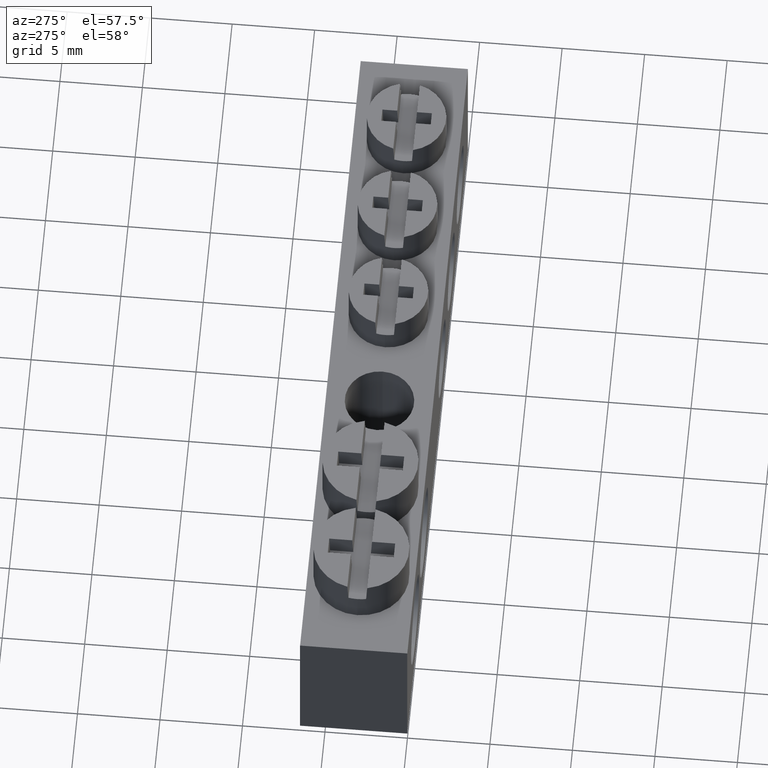
[diagram: clean part render]
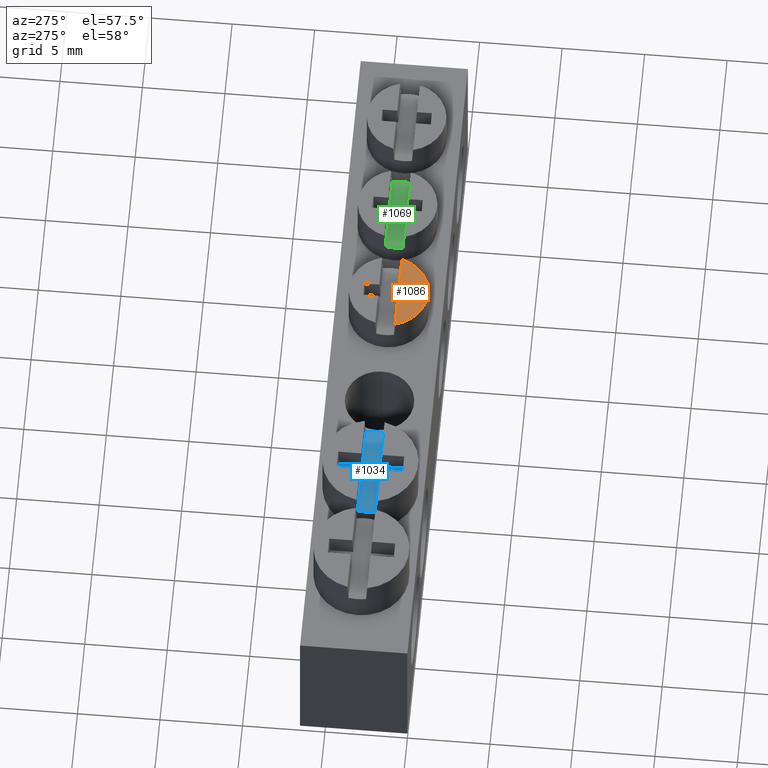
[diagram: same view with three faces highlighted in distinct colors, each labeled with its STEP entity id]
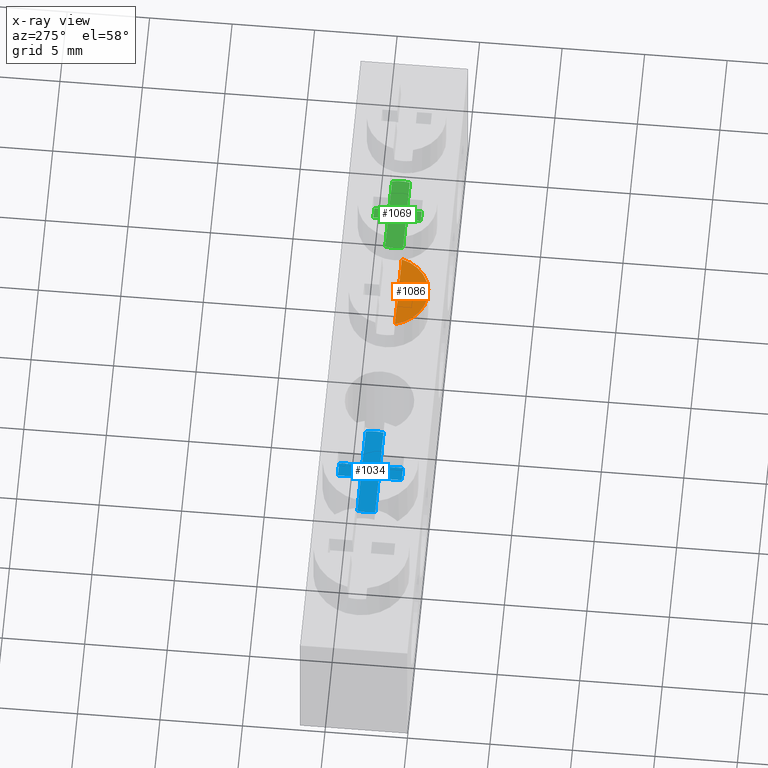
[diagram: x-ray of the same camera — body ghosted, the three highlighted faces saturated]
A machine part, auxiliary view with three faces highlighted in distinct colors.
The next image is the same camera in x-ray (body ghosted, the three faces saturated) — at least one of them is partly hidden behind the body in this view.
Their STEP definitions:

[orange] entity #1086 — the highlighted planar face has unit normal (0, -0, -1).
#451 = DIRECTION ( 'NONE',  ( 0.9999995805169152900, -0.0009159508684426614400, 0.0000000000000000000 ) ) ;
#452 = DIRECTION ( 'NONE',  ( -0.0009159508684351666700, -0.9999995805169152900, 0.0000000000000000000 ) ) ;
#454 = LINE ( 'NONE', #474, #1683 ) ;
#474 = CARTESIAN_POINT ( 'NONE',  ( 23.62445059727219400, 2.650366632037224800, 11.57000000000000000 ) ) ;
#493 = LINE ( 'NONE', #494, #1709 ) ;
#494 = CARTESIAN_POINT ( 'NONE',  ( 21.70066139654508700, 2.652128729165501600, 11.57000000000000000 ) ) ;
#503 = LINE ( 'NONE', #512, #1735 ) ;
#512 = CARTESIAN_POINT ( 'NONE',  ( 23.62362624149060500, 1.750367009571999600, 11.57000000000000000 ) ) ;
#531 = DIRECTION ( 'NONE',  ( 0.9999995805169152900, -0.0009159508684425023800, 0.0000000000000000000 ) ) ;
#637 = DIRECTION ( 'NONE',  ( 1.000000000000000000, 0.0000000000000000000, 0.0000000000000000000 ) ) ;
#638 = LINE ( 'NONE', #660, #1800 ) ;
#652 = DIRECTION ( 'NONE',  ( 8.334928087094020100E-017, -7.634387822271229700E-020, -1.000000000000000000 ) ) ;
#654 = CARTESIAN_POINT ( 'NONE',  ( 24.02500000000000200, 3.250000000000000900, 11.57000000000000000 ) ) ;
#660 = CARTESIAN_POINT ( 'NONE',  ( 24.42362590590409600, 1.749634248877245800, 11.57000000000000000 ) ) ;
#661 = DIRECTION ( 'NONE',  ( 0.0009159508684582958500, 0.9999995805169152900, 0.0000000000000000000 ) ) ;
#759 = CARTESIAN_POINT ( 'NONE',  ( 24.42445026168571000, 2.649633871342471600, 11.57000000000000000 ) ) ;
#780 = LINE ( 'NONE', #759, #1761 ) ;
#799 = DIRECTION ( 'NONE',  ( 0.9999995805169152900, -0.0009159508684422253700, 0.0000000000000000000 ) ) ;
#926 = EDGE_LOOP ( 'NONE', ( #2547, #2594, #2597, #2598, #2488, #2516 ) ) ;
#1086 = ADVANCED_FACE ( 'NONE', ( #3416 ), #3413, .F. ) ;
#1244 = EDGE_CURVE ( 'NONE', #3021, #3045, #454, .T. ) ;
#1252 = EDGE_CURVE ( 'NONE', #2993, #3021, #493, .T. ) ;
#1267 = EDGE_CURVE ( 'NONE', #3045, #2971, #503, .T. ) ;
#1300 = EDGE_CURVE ( 'NONE', #3043, #2993, #1791, .T. ) ;
#1306 = EDGE_CURVE ( 'NONE', #2971, #2948, #638, .T. ) ;
#1341 = EDGE_CURVE ( 'NONE', #2948, #3043, #780, .T. ) ;
#1503 = AXIS2_PLACEMENT_3D ( 'NONE', #3401, #3375, #3425 ) ;
#1683 = VECTOR ( 'NONE', #452, 1000.000000000000200 ) ;
#1709 = VECTOR ( 'NONE', #451, 1000.000000000000100 ) ;
#1735 = VECTOR ( 'NONE', #531, 1000.000000000000100 ) ;
#1761 = VECTOR ( 'NONE', #799, 1000.000000000000100 ) ;
#1770 = AXIS2_PLACEMENT_3D ( 'NONE', #654, #652, #637 ) ;
#1791 = CIRCLE ( 'NONE', #1770, 2.399999999999999500 ) ;
#1800 = VECTOR ( 'NONE', #661, 1000.000000000000100 ) ;
#2174 = CARTESIAN_POINT ( 'NONE',  ( 24.42362590590410700, 1.749634248877245800, 11.57000000000000200 ) ) ;
#2203 = CARTESIAN_POINT ( 'NONE',  ( 24.42445026168570600, 2.649633871342472500, 11.57000000000000200 ) ) ;
#2216 = CARTESIAN_POINT ( 'NONE',  ( 21.70066139654508300, 2.652128729165502500, 11.57000000000000000 ) ) ;
#2236 = CARTESIAN_POINT ( 'NONE',  ( 26.34823946241278500, 2.647871774214196200, 11.57000000000000000 ) ) ;
#2250 = CARTESIAN_POINT ( 'NONE',  ( 23.62445059727219000, 2.650366632037224800, 11.57000000000000200 ) ) ;
#2261 = CARTESIAN_POINT ( 'NONE',  ( 23.62362624149059800, 1.750367009571999400, 11.57000000000000200 ) ) ;
#2488 = ORIENTED_EDGE ( 'NONE', *, *, #1267, .F. ) ;
#2516 = ORIENTED_EDGE ( 'NONE', *, *, #1244, .F. ) ;
#2547 = ORIENTED_EDGE ( 'NONE', *, *, #1252, .F. ) ;
#2594 = ORIENTED_EDGE ( 'NONE', *, *, #1300, .F. ) ;
#2597 = ORIENTED_EDGE ( 'NONE', *, *, #1341, .F. ) ;
#2598 = ORIENTED_EDGE ( 'NONE', *, *, #1306, .F. ) ;
#2948 = VERTEX_POINT ( 'NONE', #2203 ) ;
#2971 = VERTEX_POINT ( 'NONE', #2174 ) ;
#2993 = VERTEX_POINT ( 'NONE', #2216 ) ;
#3021 = VERTEX_POINT ( 'NONE', #2250 ) ;
#3043 = VERTEX_POINT ( 'NONE', #2236 ) ;
#3045 = VERTEX_POINT ( 'NONE', #2261 ) ;
#3375 = DIRECTION ( 'NONE',  ( 8.325394558248058400E-017, -1.041597087756019900E-016, -1.000000000000000000 ) ) ;
#3401 = CARTESIAN_POINT ( 'NONE',  ( 24.02500000000000200, 3.250000000000000900, 11.57000000000000000 ) ) ;
#3413 = PLANE ( 'NONE',  #1503 ) ;
#3416 = FACE_OUTER_BOUND ( 'NONE', #926, .T. ) ;
#3425 = DIRECTION ( 'NONE',  ( 0.0000000000000000000, 1.000000000000000000, -1.041597087756019900E-016 ) ) ;

[blue] entity #1034 — the highlighted planar face has unit normal (-0, 0, -1).
#203 = DIRECTION ( 'NONE',  ( 1.000000000000000000, 1.420678708774109300E-014, 0.0000000000000000000 ) ) ;
#208 = DIRECTION ( 'NONE',  ( -6.938880860708999700E-018, 9.513422018793010800E-021, -1.000000000000000000 ) ) ;
#222 = CARTESIAN_POINT ( 'NONE',  ( 11.52500000000000000, 3.250000000000000900, 10.80000000000000100 ) ) ;
#280 = DIRECTION ( 'NONE',  ( -6.938880860708999700E-018, 9.513422018793010800E-021, -1.000000000000000000 ) ) ;
#282 = DIRECTION ( 'NONE',  ( 1.000000000000000000, 0.0000000000000000000, 0.0000000000000000000 ) ) ;
#285 = CARTESIAN_POINT ( 'NONE',  ( 11.52500000000000000, 3.250000000000000900, 10.80000000000000100 ) ) ;
#590 = LINE ( 'NONE', #591, #1820 ) ;
#591 = CARTESIAN_POINT ( 'NONE',  ( 11.09054558258908700, 5.187708136031458700, 10.80000000000000100 ) ) ;
#597 = DIRECTION ( 'NONE',  ( 0.9999990601380758200, -0.001371029892067901900, 0.0000000000000000000 ) ) ;
#648 = LINE ( 'NONE', #658, #1798 ) ;
#650 = DIRECTION ( 'NONE',  ( 0.9999990601380758200, -0.001371029892061744100, 7.189919831439450000E-016 ) ) ;
#658 = CARTESIAN_POINT ( 'NONE',  ( 8.674439598814943900, 2.716797037521634800, 10.80000000000000100 ) ) ;
#663 = LINE ( 'NONE', #677, #1810 ) ;
#677 = CARTESIAN_POINT ( 'NONE',  ( 11.96137385925980500, 2.712290548161845600, 10.79999999999999900 ) ) ;
#679 = LINE ( 'NONE', #701, #1782 ) ;
#699 = DIRECTION ( 'NONE',  ( 0.9999990601380758200, -0.001371029892061743200, 7.189919831439445100E-016 ) ) ;
#701 = CARTESIAN_POINT ( 'NONE',  ( 11.08715335118646500, 2.713489131737172300, 10.80000000000000200 ) ) ;
#707 = DIRECTION ( 'NONE',  ( -0.001371029892062053700, -0.9999990601380758200, -2.478176394252586100E-015 ) ) ;
#710 = LINE ( 'NONE', #749, #1751 ) ;
#717 = DIRECTION ( 'NONE',  ( -0.9999990601380758200, 0.001371029892061923200, 7.189919831439445100E-016 ) ) ;
#749 = CARTESIAN_POINT ( 'NONE',  ( 14.37556040118505900, 3.783202962478359900, 10.80000000000000100 ) ) ;
#758 = CARTESIAN_POINT ( 'NONE',  ( 11.08523390933757100, 1.313490447543869800, 10.79999999999999900 ) ) ;
#764 = CARTESIAN_POINT ( 'NONE',  ( 11.08862614074020100, 3.787709451838149600, 10.79999999999999900 ) ) ;
#767 = DIRECTION ( 'NONE',  ( -6.938880860708999700E-018, 9.513422018793010800E-021, -1.000000000000000000 ) ) ;
#774 = LINE ( 'NONE', #764, #1897 ) ;
#779 = LINE ( 'NONE', #758, #1918 ) ;
#781 = CARTESIAN_POINT ( 'NONE',  ( 11.52500000000000000, 3.250000000000000900, 10.80000000000000100 ) ) ;
#784 = DIRECTION ( 'NONE',  ( 0.9999990601380758200, -0.001371029892062197300, 3.968613935628955300E-015 ) ) ;
#789 = DIRECTION ( 'NONE',  ( 1.000000000000000000, 0.0000000000000000000, 0.0000000000000000000 ) ) ;
#800 = DIRECTION ( 'NONE',  ( -0.9999990601380758200, 0.001371029892061741300, 7.189919831439435200E-016 ) ) ;
#889 = EDGE_LOOP ( 'NONE', ( #2619, #2641, #2557, #2606, #2640, #2654, #2609, #2634, #2618, #2552, #2666, #2656, #2591, #2595 ) ) ;
#1034 = ADVANCED_FACE ( 'NONE', ( #3110 ), #3152, .F. ) ;
#1157 = EDGE_CURVE ( 'NONE', #2921, #2918, #1604, .T. ) ;
#1188 = EDGE_CURVE ( 'NONE', #2825, #2887, #1627, .T. ) ;
#1296 = EDGE_CURVE ( 'NONE', #3037, #3008, #590, .T. ) ;
#1305 = EDGE_CURVE ( 'NONE', #2942, #3014, #648, .T. ) ;
#1310 = EDGE_CURVE ( 'NONE', #3014, #3023, #679, .T. ) ;
#1314 = EDGE_CURVE ( 'NONE', #3050, #2969, #663, .T. ) ;
#1329 = EDGE_CURVE ( 'NONE', #2921, #3000, #710, .T. ) ;
#1338 = EDGE_CURVE ( 'NONE', #2918, #2969, #1848, .T. ) ;
#1346 = EDGE_CURVE ( 'NONE', #3017, #2887, #774, .T. ) ;
#1351 = EDGE_CURVE ( 'NONE', #3023, #2964, #779, .T. ) ;
#1371 = EDGE_CURVE ( 'NONE', #2942, #2825, #1933, .T. ) ;
#1385 = EDGE_CURVE ( 'NONE', #3008, #3000, #1826, .T. ) ;
#1392 = EDGE_CURVE ( 'NONE', #3017, #3037, #1930, .T. ) ;
#1405 = EDGE_CURVE ( 'NONE', #2964, #3050, #1949, .T. ) ;
#1441 = AXIS2_PLACEMENT_3D ( 'NONE', #3139, #3147, #3119 ) ;
#1568 = AXIS2_PLACEMENT_3D ( 'NONE', #222, #208, #203 ) ;
#1604 = CIRCLE ( 'NONE', #1568, 2.899999999999999900 ) ;
#1627 = CIRCLE ( 'NONE', #1643, 2.899999999999999900 ) ;
#1643 = AXIS2_PLACEMENT_3D ( 'NONE', #285, #280, #282 ) ;
#1712 = DIRECTION ( 'NONE',  ( -6.938880860708999700E-018, 9.513422018793010800E-021, -1.000000000000000000 ) ) ;
#1750 = DIRECTION ( 'NONE',  ( 1.000000000000000000, 0.0000000000000000000, 0.0000000000000000000 ) ) ;
#1751 = VECTOR ( 'NONE', #717, 1000.000000000000100 ) ;
#1782 = VECTOR ( 'NONE', #707, 1000.000000000000100 ) ;
#1798 = VECTOR ( 'NONE', #650, 1000.000000000000100 ) ;
#1810 = VECTOR ( 'NONE', #699, 1000.000000000000100 ) ;
#1820 = VECTOR ( 'NONE', #597, 1000.000000000000200 ) ;
#1826 = LINE ( 'NONE', #1828, #1943 ) ;
#1828 = CARTESIAN_POINT ( 'NONE',  ( 11.96476609066243700, 5.186509552456128000, 10.80000000000000100 ) ) ;
#1831 = DIRECTION ( 'NONE',  ( -0.001371029892067010300, -0.9999990601380758200, 0.0000000000000000000 ) ) ;
#1848 = CIRCLE ( 'NONE', #1852, 2.899999999999999900 ) ;
#1852 = AXIS2_PLACEMENT_3D ( 'NONE', #781, #767, #789 ) ;
#1875 = CARTESIAN_POINT ( 'NONE',  ( 11.08862614074020100, 3.787709451838149100, 10.80000000000000100 ) ) ;
#1897 = VECTOR ( 'NONE', #800, 1000.000000000000200 ) ;
#1900 = DIRECTION ( 'NONE',  ( 0.001371029892060808200, 0.9999990601380758200, 0.0000000000000000000 ) ) ;
#1918 = VECTOR ( 'NONE', #784, 1000.000000000000200 ) ;
#1928 = AXIS2_PLACEMENT_3D ( 'NONE', #2316, #1712, #1750 ) ;
#1930 = LINE ( 'NONE', #1875, #2013 ) ;
#1933 = CIRCLE ( 'NONE', #1928, 2.899999999999999900 ) ;
#1943 = VECTOR ( 'NONE', #1831, 1000.000000000000200 ) ;
#1949 = LINE ( 'NONE', #1973, #2064 ) ;
#1970 = DIRECTION ( 'NONE',  ( 0.001371029892062056100, 0.9999990601380758200, -3.717264591378886200E-015 ) ) ;
#1973 = CARTESIAN_POINT ( 'NONE',  ( 11.95945441741092300, 1.312291863968544400, 10.80000000000000200 ) ) ;
#2013 = VECTOR ( 'NONE', #1900, 1000.000000000000200 ) ;
#2053 = CARTESIAN_POINT ( 'NONE',  ( 8.625000000000000000, 3.250000000000001300, 10.80000000000000100 ) ) ;
#2064 = VECTOR ( 'NONE', #1970, 1000.000000000000100 ) ;
#2105 = CARTESIAN_POINT ( 'NONE',  ( 14.37556040118505700, 3.783202962478360300, 10.80000000000000100 ) ) ;
#2114 = CARTESIAN_POINT ( 'NONE',  ( 8.675912388368681500, 3.791017357622614300, 10.80000000000000100 ) ) ;
#2148 = CARTESIAN_POINT ( 'NONE',  ( 14.42500000000000100, 3.250000000000000900, 10.80000000000000100 ) ) ;
#2157 = CARTESIAN_POINT ( 'NONE',  ( 11.95945441741092500, 1.312291863968544400, 10.80000000000000200 ) ) ;
#2158 = CARTESIAN_POINT ( 'NONE',  ( 14.37408761163131600, 2.708982642377380800, 10.80000000000000100 ) ) ;
#2184 = CARTESIAN_POINT ( 'NONE',  ( 11.96284664881354600, 3.786510868262825000, 10.80000000000000200 ) ) ;
#2200 = CARTESIAN_POINT ( 'NONE',  ( 8.674439598814947400, 2.716797037521634800, 10.80000000000000100 ) ) ;
#2220 = CARTESIAN_POINT ( 'NONE',  ( 11.08523390933757800, 1.313490447543868900, 10.79999999999999900 ) ) ;
#2221 = CARTESIAN_POINT ( 'NONE',  ( 11.96476609066243700, 5.186509552456128000, 10.79999999999999900 ) ) ;
#2226 = CARTESIAN_POINT ( 'NONE',  ( 11.08862614074020100, 3.787709451838149100, 10.79999999999999900 ) ) ;
#2251 = CARTESIAN_POINT ( 'NONE',  ( 11.09054558258908900, 5.187708136031458700, 10.79999999999999900 ) ) ;
#2260 = CARTESIAN_POINT ( 'NONE',  ( 11.96137385925980600, 2.712290548161845600, 10.79999999999999700 ) ) ;
#2262 = CARTESIAN_POINT ( 'NONE',  ( 11.08715335118646200, 2.713489131737171400, 10.80000000000000200 ) ) ;
#2316 = CARTESIAN_POINT ( 'NONE',  ( 11.52500000000000000, 3.250000000000000900, 10.80000000000000100 ) ) ;
#2552 = ORIENTED_EDGE ( 'NONE', *, *, #1314, .T. ) ;
#2557 = ORIENTED_EDGE ( 'NONE', *, *, #1346, .T. ) ;
#2591 = ORIENTED_EDGE ( 'NONE', *, *, #1329, .T. ) ;
#2595 = ORIENTED_EDGE ( 'NONE', *, *, #1385, .F. ) ;
#2606 = ORIENTED_EDGE ( 'NONE', *, *, #1188, .F. ) ;
#2609 = ORIENTED_EDGE ( 'NONE', *, *, #1310, .T. ) ;
#2618 = ORIENTED_EDGE ( 'NONE', *, *, #1405, .T. ) ;
#2619 = ORIENTED_EDGE ( 'NONE', *, *, #1296, .F. ) ;
#2634 = ORIENTED_EDGE ( 'NONE', *, *, #1351, .T. ) ;
#2640 = ORIENTED_EDGE ( 'NONE', *, *, #1371, .F. ) ;
#2641 = ORIENTED_EDGE ( 'NONE', *, *, #1392, .F. ) ;
#2654 = ORIENTED_EDGE ( 'NONE', *, *, #1305, .T. ) ;
#2656 = ORIENTED_EDGE ( 'NONE', *, *, #1157, .F. ) ;
#2666 = ORIENTED_EDGE ( 'NONE', *, *, #1338, .F. ) ;
#2825 = VERTEX_POINT ( 'NONE', #2053 ) ;
#2887 = VERTEX_POINT ( 'NONE', #2114 ) ;
#2918 = VERTEX_POINT ( 'NONE', #2148 ) ;
#2921 = VERTEX_POINT ( 'NONE', #2105 ) ;
#2942 = VERTEX_POINT ( 'NONE', #2200 ) ;
#2964 = VERTEX_POINT ( 'NONE', #2157 ) ;
#2969 = VERTEX_POINT ( 'NONE', #2158 ) ;
#3000 = VERTEX_POINT ( 'NONE', #2184 ) ;
#3008 = VERTEX_POINT ( 'NONE', #2221 ) ;
#3014 = VERTEX_POINT ( 'NONE', #2262 ) ;
#3017 = VERTEX_POINT ( 'NONE', #2226 ) ;
#3023 = VERTEX_POINT ( 'NONE', #2220 ) ;
#3037 = VERTEX_POINT ( 'NONE', #2251 ) ;
#3050 = VERTEX_POINT ( 'NONE', #2260 ) ;
#3110 = FACE_OUTER_BOUND ( 'NONE', #889, .T. ) ;
#3119 = DIRECTION ( 'NONE',  ( 0.0000000000000000000, 1.000000000000000000, 1.388728818662889900E-017 ) ) ;
#3139 = CARTESIAN_POINT ( 'NONE',  ( 15.60279512205490000, 2.644408651821709800, 10.80000000000000100 ) ) ;
#3147 = DIRECTION ( 'NONE',  ( -6.919853998788799400E-018, 1.388728818662889900E-017, -1.000000000000000000 ) ) ;
#3152 = PLANE ( 'NONE',  #1441 ) ;

[green] entity #1069 — the highlighted planar face has unit normal (0, -0, -1).
#190 = DIRECTION ( 'NONE',  ( 1.000000000000000000, -5.240310500346613700E-015, 0.0000000000000000000 ) ) ;
#213 = CARTESIAN_POINT ( 'NONE',  ( 30.27499999999999900, 3.250000000000000900, 10.37000000000000100 ) ) ;
#218 = DIRECTION ( 'NONE',  ( 8.334928087094020100E-017, -7.634387822271229700E-020, -1.000000000000000000 ) ) ;
#408 = CARTESIAN_POINT ( 'NONE',  ( 27.93538265303706300, 2.715032085270431900, 10.37000000000000100 ) ) ;
#416 = CARTESIAN_POINT ( 'NONE',  ( 29.93838144353180300, 3.787419216357747600, 10.37000000000000100 ) ) ;
#418 = CARTESIAN_POINT ( 'NONE',  ( 30.27499999999999900, 3.250000000000000900, 10.37000000000000100 ) ) ;
#420 = CARTESIAN_POINT ( 'NONE',  ( 30.27499999999999900, 3.250000000000000900, 10.37000000000000100 ) ) ;
#432 = DIRECTION ( 'NONE',  ( 1.000000000000000000, 0.0000000000000000000, 0.0000000000000000000 ) ) ;
#433 = LINE ( 'NONE', #416, #1669 ) ;
#434 = DIRECTION ( 'NONE',  ( 0.0009159508684467308800, 0.9999995805169152900, 0.0000000000000000000 ) ) ;
#435 = LINE ( 'NONE', #408, #1740 ) ;
#437 = DIRECTION ( 'NONE',  ( 8.334928087094020100E-017, -7.634387822271229700E-020, -1.000000000000000000 ) ) ;
#440 = DIRECTION ( 'NONE',  ( 8.334928087094020100E-017, -7.634387822271229700E-020, -1.000000000000000000 ) ) ;
#443 = DIRECTION ( 'NONE',  ( 1.000000000000000000, 0.0000000000000000000, 0.0000000000000000000 ) ) ;
#449 = DIRECTION ( 'NONE',  ( 0.9999995805169152900, -0.0009159508684425028200, 0.0000000000000000000 ) ) ;
#479 = LINE ( 'NONE', #491, #1705 ) ;
#491 = CARTESIAN_POINT ( 'NONE',  ( 32.61461734696293700, 3.784967914729563600, 10.37000000000000100 ) ) ;
#492 = DIRECTION ( 'NONE',  ( -0.9999995805169152900, 0.0009159508684425108400, -8.664884491877097200E-016 ) ) ;
#502 = CARTESIAN_POINT ( 'NONE',  ( 29.93739750957194800, 2.713198337254725700, 10.37000000000000100 ) ) ;
#505 = DIRECTION ( 'NONE',  ( 0.9999995805169152900, -0.0009159508684427259500, 0.0000000000000000000 ) ) ;
#507 = DIRECTION ( 'NONE',  ( -0.0009159508684428740500, -0.9999995805169152900, 0.0000000000000000000 ) ) ;
#508 = CARTESIAN_POINT ( 'NONE',  ( 30.61079420068662000, 1.812581161177019100, 10.37000000000000100 ) ) ;
#514 = LINE ( 'NONE', #502, #1722 ) ;
#533 = DIRECTION ( 'NONE',  ( 0.0009159508684467321800, 0.9999995805169152900, 0.0000000000000000000 ) ) ;
#536 = LINE ( 'NONE', #508, #1690 ) ;
#537 = LINE ( 'NONE', #540, #1727 ) ;
#540 = CARTESIAN_POINT ( 'NONE',  ( 30.61161855646820800, 2.712580783642247500, 10.37000000000000100 ) ) ;
#552 = DIRECTION ( 'NONE',  ( 8.334928087094020100E-017, -7.634387822271229700E-020, -1.000000000000000000 ) ) ;
#566 = DIRECTION ( 'NONE',  ( 1.000000000000000000, 5.240310500346613700E-015, 0.0000000000000000000 ) ) ;
#571 = CARTESIAN_POINT ( 'NONE',  ( 30.27499999999999900, 3.250000000000000900, 10.37000000000000100 ) ) ;
#586 = CARTESIAN_POINT ( 'NONE',  ( 29.93657315379034900, 1.813198714789499900, 10.37000000000000100 ) ) ;
#588 = DIRECTION ( 'NONE',  ( -0.0009159508684313100600, -0.9999995805169152900, 0.0000000000000000000 ) ) ;
#600 = CARTESIAN_POINT ( 'NONE',  ( 30.61342684620965600, 4.686801285210493400, 10.37000000000000100 ) ) ;
#607 = LINE ( 'NONE', #586, #1699 ) ;
#608 = LINE ( 'NONE', #600, #1787 ) ;
#614 = DIRECTION ( 'NONE',  ( 0.9999995805169152900, -0.0009159508684425156100, 0.0000000000000000000 ) ) ;
#668 = CARTESIAN_POINT ( 'NONE',  ( 29.93920579931340200, 4.687418838822972900, 10.37000000000000100 ) ) ;
#671 = DIRECTION ( 'NONE',  ( 0.9999995805169152900, -0.0009159508684425202700, 0.0000000000000000000 ) ) ;
#675 = LINE ( 'NONE', #668, #1809 ) ;
#713 = LINE ( 'NONE', #744, #1768 ) ;
#733 = DIRECTION ( 'NONE',  ( -0.9999995805169152900, 0.0009159508684425059600, 0.0000000000000000000 ) ) ;
#744 = CARTESIAN_POINT ( 'NONE',  ( 29.93838144353180300, 3.787419216357748500, 10.37000000000000100 ) ) ;
#852 = EDGE_LOOP ( 'NONE', ( #2411, #2362, #2398, #2383, #2452, #2444, #2433, #2466, #2359, #2384, #2431, #2472, #2463, #2419 ) ) ;
#1069 = ADVANCED_FACE ( 'NONE', ( #3287 ), #3314, .F. ) ;
#1164 = EDGE_CURVE ( 'NONE', #2912, #2984, #1573, .T. ) ;
#1232 = EDGE_CURVE ( 'NONE', #2940, #2970, #1680, .T. ) ;
#1233 = EDGE_CURVE ( 'NONE', #2984, #2978, #1676, .T. ) ;
#1234 = EDGE_CURVE ( 'NONE', #2990, #2925, #433, .T. ) ;
#1237 = EDGE_CURVE ( 'NONE', #2940, #2953, #435, .T. ) ;
#1251 = EDGE_CURVE ( 'NONE', #2912, #2916, #479, .T. ) ;
#1257 = EDGE_CURVE ( 'NONE', #3047, #3026, #536, .T. ) ;
#1262 = EDGE_CURVE ( 'NONE', #3026, #2978, #537, .T. ) ;
#1264 = EDGE_CURVE ( 'NONE', #2953, #2983, #514, .T. ) ;
#1270 = EDGE_CURVE ( 'NONE', #2970, #2875, #1716, .T. ) ;
#1285 = EDGE_CURVE ( 'NONE', #2983, #3047, #607, .T. ) ;
#1293 = EDGE_CURVE ( 'NONE', #2915, #2916, #608, .T. ) ;
#1317 = EDGE_CURVE ( 'NONE', #2925, #2915, #675, .T. ) ;
#1327 = EDGE_CURVE ( 'NONE', #2990, #2875, #713, .T. ) ;
#1515 = AXIS2_PLACEMENT_3D ( 'NONE', #3288, #3278, #3307 ) ;
#1573 = CIRCLE ( 'NONE', #1576, 2.399999999999995900 ) ;
#1576 = AXIS2_PLACEMENT_3D ( 'NONE', #213, #218, #190 ) ;
#1668 = AXIS2_PLACEMENT_3D ( 'NONE', #420, #437, #432 ) ;
#1669 = VECTOR ( 'NONE', #434, 1000.000000000000100 ) ;
#1671 = AXIS2_PLACEMENT_3D ( 'NONE', #418, #440, #443 ) ;
#1676 = CIRCLE ( 'NONE', #1671, 2.399999999999995900 ) ;
#1680 = CIRCLE ( 'NONE', #1668, 2.399999999999995900 ) ;
#1690 = VECTOR ( 'NONE', #533, 1000.000000000000100 ) ;
#1699 = VECTOR ( 'NONE', #614, 1000.000000000000000 ) ;
#1705 = VECTOR ( 'NONE', #492, 1000.000000000000100 ) ;
#1716 = CIRCLE ( 'NONE', #1737, 2.399999999999995900 ) ;
#1722 = VECTOR ( 'NONE', #507, 1000.000000000000000 ) ;
#1727 = VECTOR ( 'NONE', #505, 1000.000000000000100 ) ;
#1737 = AXIS2_PLACEMENT_3D ( 'NONE', #571, #552, #566 ) ;
#1740 = VECTOR ( 'NONE', #449, 1000.000000000000100 ) ;
#1768 = VECTOR ( 'NONE', #733, 1000.000000000000100 ) ;
#1787 = VECTOR ( 'NONE', #588, 1000.000000000000100 ) ;
#1809 = VECTOR ( 'NONE', #671, 1000.000000000000100 ) ;
#2057 = CARTESIAN_POINT ( 'NONE',  ( 27.93636658699692200, 3.789252964373452500, 10.37000000000000100 ) ) ;
#2098 = CARTESIAN_POINT ( 'NONE',  ( 27.93538265303706300, 2.715032085270432400, 10.37000000000000100 ) ) ;
#2110 = CARTESIAN_POINT ( 'NONE',  ( 30.61342684620965600, 4.686801285210494300, 10.37000000000000100 ) ) ;
#2113 = CARTESIAN_POINT ( 'NONE',  ( 30.61260249042807400, 3.786801662745266300, 10.36999999999999900 ) ) ;
#2129 = CARTESIAN_POINT ( 'NONE',  ( 29.93920579931340200, 4.687418838822972900, 10.37000000000000100 ) ) ;
#2149 = CARTESIAN_POINT ( 'NONE',  ( 32.61461734696293700, 3.784967914729564100, 10.37000000000000100 ) ) ;
#2160 = CARTESIAN_POINT ( 'NONE',  ( 29.93739750957194800, 2.713198337254726100, 10.37000000000000100 ) ) ;
#2165 = CARTESIAN_POINT ( 'NONE',  ( 29.93838144353179900, 3.787419216357748000, 10.37000000000000100 ) ) ;
#2183 = CARTESIAN_POINT ( 'NONE',  ( 29.93657315379034900, 1.813198714789498600, 10.37000000000000100 ) ) ;
#2193 = CARTESIAN_POINT ( 'NONE',  ( 32.61363341300307900, 2.710747035626543100, 10.37000000000000100 ) ) ;
#2206 = CARTESIAN_POINT ( 'NONE',  ( 27.87500000000000400, 3.250000000000001300, 10.37000000000000100 ) ) ;
#2211 = CARTESIAN_POINT ( 'NONE',  ( 32.67499999999999700, 3.250000000000000900, 10.37000000000000100 ) ) ;
#2242 = CARTESIAN_POINT ( 'NONE',  ( 30.61079420068661600, 1.812581161177019100, 10.37000000000000100 ) ) ;
#2248 = CARTESIAN_POINT ( 'NONE',  ( 30.61161855646821200, 2.712580783642247500, 10.37000000000000100 ) ) ;
#2359 = ORIENTED_EDGE ( 'NONE', *, *, #1257, .T. ) ;
#2362 = ORIENTED_EDGE ( 'NONE', *, *, #1234, .F. ) ;
#2383 = ORIENTED_EDGE ( 'NONE', *, *, #1270, .F. ) ;
#2384 = ORIENTED_EDGE ( 'NONE', *, *, #1262, .T. ) ;
#2398 = ORIENTED_EDGE ( 'NONE', *, *, #1327, .T. ) ;
#2411 = ORIENTED_EDGE ( 'NONE', *, *, #1317, .F. ) ;
#2419 = ORIENTED_EDGE ( 'NONE', *, *, #1293, .F. ) ;
#2431 = ORIENTED_EDGE ( 'NONE', *, *, #1233, .F. ) ;
#2433 = ORIENTED_EDGE ( 'NONE', *, *, #1264, .T. ) ;
#2444 = ORIENTED_EDGE ( 'NONE', *, *, #1237, .T. ) ;
#2452 = ORIENTED_EDGE ( 'NONE', *, *, #1232, .F. ) ;
#2463 = ORIENTED_EDGE ( 'NONE', *, *, #1251, .T. ) ;
#2466 = ORIENTED_EDGE ( 'NONE', *, *, #1285, .T. ) ;
#2472 = ORIENTED_EDGE ( 'NONE', *, *, #1164, .F. ) ;
#2875 = VERTEX_POINT ( 'NONE', #2057 ) ;
#2912 = VERTEX_POINT ( 'NONE', #2149 ) ;
#2915 = VERTEX_POINT ( 'NONE', #2110 ) ;
#2916 = VERTEX_POINT ( 'NONE', #2113 ) ;
#2925 = VERTEX_POINT ( 'NONE', #2129 ) ;
#2940 = VERTEX_POINT ( 'NONE', #2098 ) ;
#2953 = VERTEX_POINT ( 'NONE', #2160 ) ;
#2970 = VERTEX_POINT ( 'NONE', #2206 ) ;
#2978 = VERTEX_POINT ( 'NONE', #2193 ) ;
#2983 = VERTEX_POINT ( 'NONE', #2183 ) ;
#2984 = VERTEX_POINT ( 'NONE', #2211 ) ;
#2990 = VERTEX_POINT ( 'NONE', #2165 ) ;
#3026 = VERTEX_POINT ( 'NONE', #2248 ) ;
#3047 = VERTEX_POINT ( 'NONE', #2242 ) ;
#3278 = DIRECTION ( 'NONE',  ( 8.325394558248058400E-017, -1.041597087756019900E-016, -1.000000000000000000 ) ) ;
#3287 = FACE_OUTER_BOUND ( 'NONE', #852, .T. ) ;
#3288 = CARTESIAN_POINT ( 'NONE',  ( 32.97958530502572200, 2.647522480011955000, 10.37000000000000100 ) ) ;
#3307 = DIRECTION ( 'NONE',  ( 0.0000000000000000000, 1.000000000000000000, -1.041597087756019900E-016 ) ) ;
#3314 = PLANE ( 'NONE',  #1515 ) ;